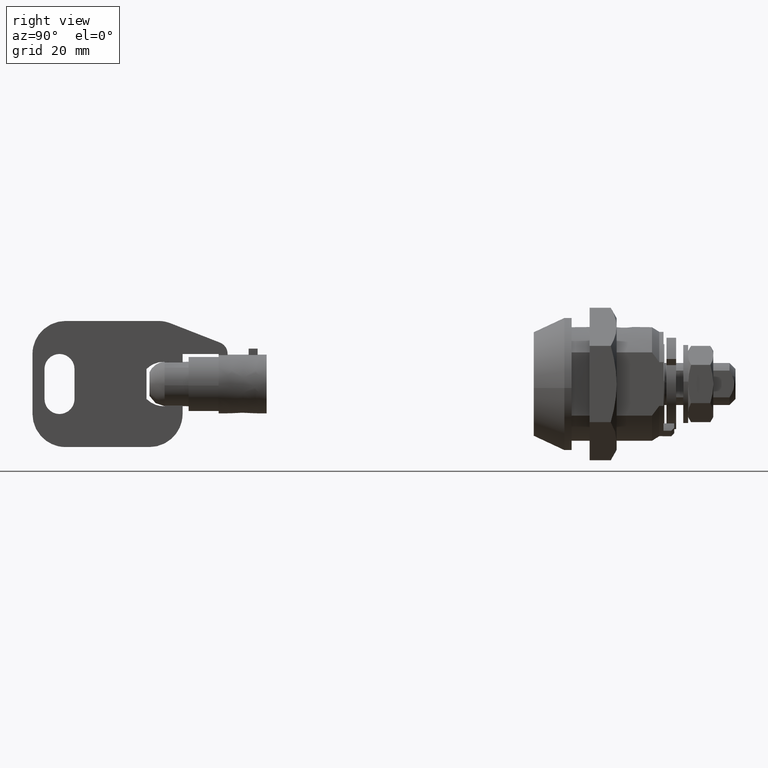
[diagram: clean part render]
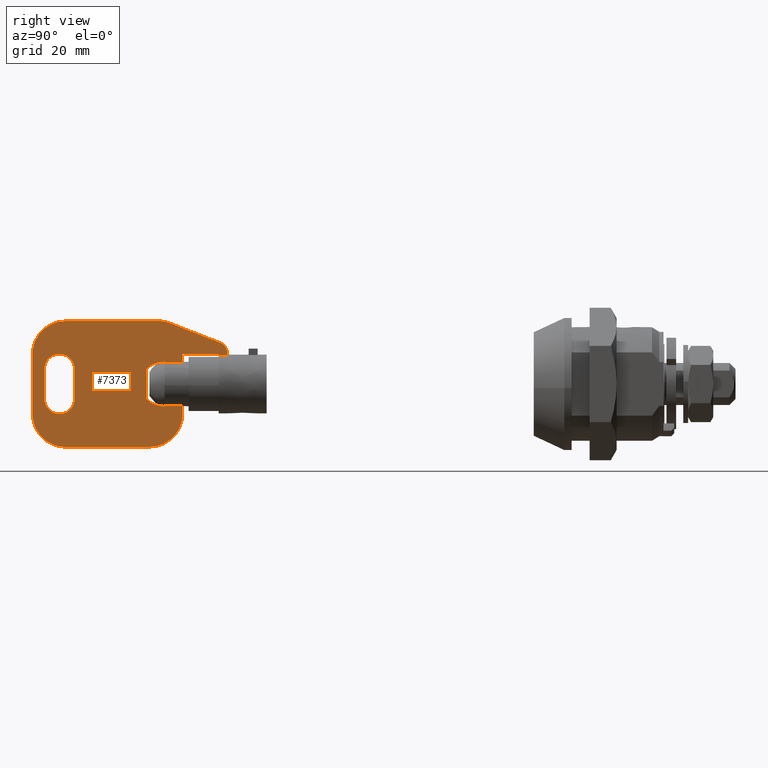
[diagram: same view with one face highlighted and labeled with its STEP entity id]
A machine part, right view. The second image highlights one B-rep face of the part: STEP entity #7373.
In plain terms, the highlighted face is a freeform B-spline surface patch.
Its self-contained STEP definition (entity closure, byte-faithful):
#5541=CARTESIAN_POINT('',(-61.487812432673103,-0.900000000000000,3.588871688985170));
#5542=VERTEX_POINT('',#5541);
#5617=CARTESIAN_POINT('',(-61.487812432673103,-0.900000000000000,-3.588871688985170));
#5618=VERTEX_POINT('',#5617);
#5632=CARTESIAN_POINT('',(-58.490193000000012,-0.900000000000000,-3.588871688985170));
#5633=VERTEX_POINT('',#5632);
#5634=CARTESIAN_POINT('',(-61.487812432673103,-0.900000000000000,-3.588871688985170));
#5635=CARTESIAN_POINT('',(-58.490193000000012,-0.900000000000000,-3.588871688985170));
#5636=QUASI_UNIFORM_CURVE('',1,(#5634,#5635),.UNSPECIFIED.,.F.,.U.);
#5637=EDGE_CURVE('',#5618,#5633,#5636,.T.);
#5700=CARTESIAN_POINT('',(-58.490193000000012,-0.900000000000000,3.588871688985170));
#5701=VERTEX_POINT('',#5700);
#5715=CARTESIAN_POINT('',(-58.490193000000012,-0.900000000000000,3.588871688985170));
#5716=CARTESIAN_POINT('',(-61.487812432673103,-0.900000000000000,3.588871688985170));
#5717=QUASI_UNIFORM_CURVE('',1,(#5715,#5716),.UNSPECIFIED.,.F.,.U.);
#5718=EDGE_CURVE('',#5701,#5542,#5717,.T.);
#5882=CARTESIAN_POINT('',(-50.990193000000012,-0.900000000000000,4.816637831516920));
#5883=VERTEX_POINT('',#5882);
#5897=CARTESIAN_POINT('',(-52.490192999999998,-0.900000000000000,4.816637831516920));
#5898=VERTEX_POINT('',#5897);
#5899=CARTESIAN_POINT('',(-50.990193000000012,-0.900000000000000,4.816637831516920));
#5900=CARTESIAN_POINT('',(-52.490192999999998,-0.900000000000000,4.816637831516920));
#5901=QUASI_UNIFORM_CURVE('',1,(#5899,#5900),.UNSPECIFIED.,.F.,.U.);
#5902=EDGE_CURVE('',#5883,#5898,#5901,.T.);
#6125=CARTESIAN_POINT('',(-61.490199608887401,-0.900000000000000,-3.588702282998970));
#6126=VERTEX_POINT('',#6125);
#6140=CARTESIAN_POINT('',(-61.490199608887423,-0.900000000000000,-3.588702282999030));
#6141=CARTESIAN_POINT('',(-61.489403980217247,-0.900000000000000,-3.588759073560181));
#6142=CARTESIAN_POINT('',(-61.488608254140843,-0.900000000000000,-3.588815540332797));
#6143=CARTESIAN_POINT('',(-61.487812432673103,-0.900000000000000,-3.588871688985170));
#6144=B_SPLINE_CURVE_WITH_KNOTS('',3,(#6140,#6141,#6142,#6143),.UNSPECIFIED.,.F.,.U.,(4,4),(0.0,0.000217530826525),.UNSPECIFIED.);
#6145=EDGE_CURVE('',#6126,#5618,#6144,.T.);
#6150=CARTESIAN_POINT('',(-61.490192999999891,-0.900000000000000,3.588702754722065));
#6151=VERTEX_POINT('',#6150);
#6152=CARTESIAN_POINT('',(-61.487812432673103,-0.900000000000000,3.588871688985170));
#6153=CARTESIAN_POINT('',(-61.488605935360383,-0.900000000000000,3.588815710378920));
#6154=CARTESIAN_POINT('',(-61.489399457490940,-0.900000000000000,3.588759394561064));
#6155=CARTESIAN_POINT('',(-61.490192999999891,-0.900000000000000,3.588702754722090));
#6156=B_SPLINE_CURVE_WITH_KNOTS('',3,(#6152,#6153,#6154,#6155),.UNSPECIFIED.,.F.,.U.,(4,4),(0.999783444907075,1.0),.UNSPECIFIED.);
#6157=EDGE_CURVE('',#5542,#6151,#6156,.T.);
#6409=CARTESIAN_POINT('',(-81.490193000000005,-0.900000000000012,-2.500000000000000));
#6410=VERTEX_POINT('',#6409);
#6411=CARTESIAN_POINT('',(-76.490193000000005,-0.900000000000012,-2.500000000000000));
#6412=VERTEX_POINT('',#6411);
#6413=CARTESIAN_POINT('',(-81.490193000000005,-0.900000000000012,-2.500000000000000));
#6414=CARTESIAN_POINT('',(-81.490193000000005,-0.900000000000012,-5.000000000000001));
#6415=CARTESIAN_POINT('',(-78.990193000000005,-0.900000000000012,-5.0));
#6416=CARTESIAN_POINT('',(-76.490192999999991,-0.900000000000012,-5.000000000000001));
#6417=CARTESIAN_POINT('',(-76.490193000000005,-0.900000000000012,-2.500000000000000));
#6425=(BOUNDED_CURVE()B_SPLINE_CURVE(2,(#6413,#6414,#6415,#6416,#6417),.UNSPECIFIED.,.F.,.U.)B_SPLINE_CURVE_WITH_KNOTS((3,2,3),(0.0,0.500000000000000,1.0),.UNSPECIFIED.)CURVE()GEOMETRIC_REPRESENTATION_ITEM()RATIONAL_B_SPLINE_CURVE((1.0,0.707106781186548,1.0,0.707106781186548,1.0))REPRESENTATION_ITEM(''));
#6426=EDGE_CURVE('',#6410,#6412,#6425,.T.);
#6465=CARTESIAN_POINT('',(-76.490193000000005,-0.900000000000012,2.500000000000000));
#6466=VERTEX_POINT('',#6465);
#6467=CARTESIAN_POINT('',(-76.490193000000005,-0.900000000000012,2.500000000000000));
#6468=CARTESIAN_POINT('',(-76.490193000000005,-0.900000000000012,-2.500000000000000));
#6469=QUASI_UNIFORM_CURVE('',1,(#6467,#6468),.UNSPECIFIED.,.F.,.U.);
#6470=EDGE_CURVE('',#6466,#6412,#6469,.T.);
#6506=CARTESIAN_POINT('',(-81.490193000000005,-0.900000000000012,2.500000000000000));
#6507=VERTEX_POINT('',#6506);
#6508=CARTESIAN_POINT('',(-76.490193000000005,-0.900000000000012,2.500000000000000));
#6509=CARTESIAN_POINT('',(-76.490192999999991,-0.900000000000012,5.000000000000001));
#6510=CARTESIAN_POINT('',(-78.990193000000005,-0.900000000000012,5.0));
#6511=CARTESIAN_POINT('',(-81.490193000000005,-0.900000000000012,5.000000000000001));
#6512=CARTESIAN_POINT('',(-81.490193000000005,-0.900000000000012,2.500000000000000));
#6520=(BOUNDED_CURVE()B_SPLINE_CURVE(2,(#6508,#6509,#6510,#6511,#6512),.UNSPECIFIED.,.F.,.U.)B_SPLINE_CURVE_WITH_KNOTS((3,2,3),(0.0,0.500000000000000,1.0),.UNSPECIFIED.)CURVE()GEOMETRIC_REPRESENTATION_ITEM()RATIONAL_B_SPLINE_CURVE((1.0,0.707106781186548,1.0,0.707106781186548,1.0))REPRESENTATION_ITEM(''));
#6521=EDGE_CURVE('',#6466,#6507,#6520,.T.);
#6554=CARTESIAN_POINT('',(-81.490193000000005,-0.900000000000012,-2.500000000000000));
#6555=CARTESIAN_POINT('',(-81.490193000000005,-0.900000000000012,2.500000000000000));
#6556=QUASI_UNIFORM_CURVE('',1,(#6554,#6555),.UNSPECIFIED.,.F.,.U.);
#6557=EDGE_CURVE('',#6410,#6507,#6556,.T.);
#6600=CARTESIAN_POINT('',(-62.526610622687897,-0.900000000000000,10.500000000000000));
#6601=VERTEX_POINT('',#6600);
#6607=CARTESIAN_POINT('',(-60.526312026143103,-0.900000000000000,10.123358812796660));
#6608=VERTEX_POINT('',#6607);
#6609=CARTESIAN_POINT('',(-60.526312026143110,-0.900000000000012,10.123358812796640));
#6610=CARTESIAN_POINT('',(-61.491001972461007,-0.900000000000012,10.500000000000000));
#6611=CARTESIAN_POINT('',(-62.526610622687897,-0.900000000000012,10.500000000000000));
#6619=(BOUNDED_CURVE()B_SPLINE_CURVE(2,(#6609,#6610,#6611),.UNSPECIFIED.,.F.,.U.)CURVE()GEOMETRIC_REPRESENTATION_ITEM()QUASI_UNIFORM_CURVE()RATIONAL_B_SPLINE_CURVE((1.0,0.982730833988851,1.0))REPRESENTATION_ITEM(''));
#6620=EDGE_CURVE('',#6608,#6601,#6619,.T.);
#6661=CARTESIAN_POINT('',(-52.262811692165499,-0.900000000000000,6.897063578639590));
#6662=VERTEX_POINT('',#6661);
#6668=CARTESIAN_POINT('',(-50.990193000000012,-0.900000000000000,5.034024010349899));
#6669=VERTEX_POINT('',#6668);
#6670=CARTESIAN_POINT('',(-50.990192999999998,-0.900000000000012,5.034024010349899));
#6671=CARTESIAN_POINT('',(-50.990192999999991,-0.900000000000012,6.400198635759287));
#6672=CARTESIAN_POINT('',(-52.262811692165513,-0.900000000000012,6.897063578639575));
#6680=(BOUNDED_CURVE()B_SPLINE_CURVE(2,(#6670,#6671,#6672),.UNSPECIFIED.,.F.,.U.)CURVE()GEOMETRIC_REPRESENTATION_ITEM()QUASI_UNIFORM_CURVE()RATIONAL_B_SPLINE_CURVE((1.0,0.825739260879985,1.0))REPRESENTATION_ITEM(''));
#6681=EDGE_CURVE('',#6669,#6662,#6680,.T.);
#6696=CARTESIAN_POINT('',(-58.490193000000012,-0.900000000000012,5.0));
#6697=VERTEX_POINT('',#6696);
#6698=CARTESIAN_POINT('',(-52.490192999999998,-0.900000000000012,5.0));
#6699=VERTEX_POINT('',#6698);
#6700=CARTESIAN_POINT('',(-58.490193000000012,-0.900000000000012,5.0));
#6701=CARTESIAN_POINT('',(-52.490192999999998,-0.900000000000012,5.0));
#6702=QUASI_UNIFORM_CURVE('',1,(#6700,#6701),.UNSPECIFIED.,.F.,.U.);
#6703=EDGE_CURVE('',#6697,#6699,#6702,.T.);
#6732=CARTESIAN_POINT('',(-64.490193000000005,-0.900000000000012,-2.500520151848770));
#6733=VERTEX_POINT('',#6732);
#6734=CARTESIAN_POINT('',(-64.490193000000005,-0.900000000000012,2.499520151848455));
#6735=VERTEX_POINT('',#6734);
#6736=CARTESIAN_POINT('',(-64.490193000000005,-0.900000000000012,-2.500520151848770));
#6737=CARTESIAN_POINT('',(-64.490193000000005,-0.900000000000012,2.499520151848455));
#6738=QUASI_UNIFORM_CURVE('',1,(#6736,#6737),.UNSPECIFIED.,.F.,.U.);
#6739=EDGE_CURVE('',#6733,#6735,#6738,.T.);
#6777=CARTESIAN_POINT('',(-61.490199608887401,-0.900000000000012,-3.700514335641915));
#6778=VERTEX_POINT('',#6777);
#6779=CARTESIAN_POINT('',(-64.490193000000005,-0.900000000000012,-2.500520151848772));
#6780=CARTESIAN_POINT('',(-63.255093754734816,-0.900000000000012,-3.762762620372036));
#6781=CARTESIAN_POINT('',(-61.490199608887401,-0.900000000000012,-3.700514335641909));
#6789=(BOUNDED_CURVE()B_SPLINE_CURVE(2,(#6779,#6780,#6781),.UNSPECIFIED.,.F.,.U.)CURVE()GEOMETRIC_REPRESENTATION_ITEM()QUASI_UNIFORM_CURVE()RATIONAL_B_SPLINE_CURVE((1.0,0.914809181026153,1.0))REPRESENTATION_ITEM(''));
#6790=EDGE_CURVE('',#6733,#6778,#6789,.T.);
#6830=CARTESIAN_POINT('',(-63.990192999999998,-0.900000000000012,-10.500000000000201));
#6831=VERTEX_POINT('',#6830);
#6832=CARTESIAN_POINT('',(-58.490193000000012,-0.900000000000012,-5.0));
#6833=VERTEX_POINT('',#6832);
#6834=CARTESIAN_POINT('',(-63.990192999999998,-0.900000000000012,-10.500000000000000));
#6835=CARTESIAN_POINT('',(-58.490193000000005,-0.900000000000012,-10.499999999999998));
#6836=CARTESIAN_POINT('',(-58.490193000000012,-0.900000000000012,-5.0));
#6844=(BOUNDED_CURVE()B_SPLINE_CURVE(2,(#6834,#6835,#6836),.UNSPECIFIED.,.F.,.U.)CURVE()GEOMETRIC_REPRESENTATION_ITEM()QUASI_UNIFORM_CURVE()RATIONAL_B_SPLINE_CURVE((1.0,0.707106781186548,1.0))REPRESENTATION_ITEM(''));
#6845=EDGE_CURVE('',#6831,#6833,#6844,.T.);
#6882=CARTESIAN_POINT('',(-77.990193000000005,-0.900000000000012,-10.500000000000000));
#6883=VERTEX_POINT('',#6882);
#6884=CARTESIAN_POINT('',(-77.990193000000005,-0.900000000000012,-10.500000000000000));
#6885=CARTESIAN_POINT('',(-63.990192999999998,-0.900000000000012,-10.500000000000201));
#6886=QUASI_UNIFORM_CURVE('',1,(#6884,#6885),.UNSPECIFIED.,.F.,.U.);
#6887=EDGE_CURVE('',#6883,#6831,#6886,.T.);
#6919=CARTESIAN_POINT('',(-83.490193000000005,-0.900000000000012,-5.0));
#6920=VERTEX_POINT('',#6919);
#6921=CARTESIAN_POINT('',(-83.490193000000005,-0.900000000000012,-5.0));
#6922=CARTESIAN_POINT('',(-83.490193000000005,-0.900000000000012,-10.499999999999998));
#6923=CARTESIAN_POINT('',(-77.990193000000005,-0.900000000000012,-10.500000000000000));
#6931=(BOUNDED_CURVE()B_SPLINE_CURVE(2,(#6921,#6922,#6923),.UNSPECIFIED.,.F.,.U.)CURVE()GEOMETRIC_REPRESENTATION_ITEM()QUASI_UNIFORM_CURVE()RATIONAL_B_SPLINE_CURVE((1.0,0.707106781186548,1.0))REPRESENTATION_ITEM(''));
#6932=EDGE_CURVE('',#6920,#6883,#6931,.T.);
#6963=CARTESIAN_POINT('',(-83.490193000000005,-0.900000000000012,5.0));
#6964=VERTEX_POINT('',#6963);
#6965=CARTESIAN_POINT('',(-83.490193000000005,-0.900000000000012,5.0));
#6966=CARTESIAN_POINT('',(-83.490193000000005,-0.900000000000012,-5.0));
#6967=QUASI_UNIFORM_CURVE('',1,(#6965,#6966),.UNSPECIFIED.,.F.,.U.);
#6968=EDGE_CURVE('',#6964,#6920,#6967,.T.);
#7000=CARTESIAN_POINT('',(-77.990193000000005,-0.900000000000012,10.500000000000000));
#7001=VERTEX_POINT('',#7000);
#7002=CARTESIAN_POINT('',(-77.990193000000005,-0.900000000000012,10.500000000000000));
#7003=CARTESIAN_POINT('',(-83.490193000000005,-0.900000000000012,10.499999999999998));
#7004=CARTESIAN_POINT('',(-83.490193000000005,-0.900000000000012,5.0));
#7012=(BOUNDED_CURVE()B_SPLINE_CURVE(2,(#7002,#7003,#7004),.UNSPECIFIED.,.F.,.U.)CURVE()GEOMETRIC_REPRESENTATION_ITEM()QUASI_UNIFORM_CURVE()RATIONAL_B_SPLINE_CURVE((1.0,0.707106781186548,1.0))REPRESENTATION_ITEM(''));
#7013=EDGE_CURVE('',#7001,#6964,#7012,.T.);
#7044=CARTESIAN_POINT('',(-62.526610622687897,-0.900000000000000,10.500000000000000));
#7045=CARTESIAN_POINT('',(-77.990193000000005,-0.900000000000012,10.500000000000000));
#7046=QUASI_UNIFORM_CURVE('',1,(#7044,#7045),.UNSPECIFIED.,.F.,.U.);
#7047=EDGE_CURVE('',#6601,#7001,#7046,.T.);
#7070=CARTESIAN_POINT('',(-52.262811692165499,-0.900000000000000,6.897063578639590));
#7071=CARTESIAN_POINT('',(-60.526312026143103,-0.900000000000000,10.123358812796660));
#7072=QUASI_UNIFORM_CURVE('',1,(#7070,#7071),.UNSPECIFIED.,.F.,.U.);
#7073=EDGE_CURVE('',#6662,#6608,#7072,.T.);
#7085=CARTESIAN_POINT('',(-61.490192999999998,-0.900000000000012,3.699514102538915));
#7086=VERTEX_POINT('',#7085);
#7087=CARTESIAN_POINT('',(-61.490192999999998,-0.900000000000012,3.699514102538915));
#7088=CARTESIAN_POINT('',(-61.490192999999891,-0.900000000000000,3.588702754722065));
#7089=QUASI_UNIFORM_CURVE('',1,(#7087,#7088),.UNSPECIFIED.,.F.,.U.);
#7090=EDGE_CURVE('',#7086,#6151,#7089,.T.);
#7139=CARTESIAN_POINT('',(-61.490192999999998,-0.900000000000012,3.699514102538912));
#7140=CARTESIAN_POINT('',(-63.255090991481552,-0.900000000000012,3.761765444351775));
#7141=CARTESIAN_POINT('',(-64.490193000000005,-0.900000000000012,2.499520151848459));
#7149=(BOUNDED_CURVE()B_SPLINE_CURVE(2,(#7139,#7140,#7141),.UNSPECIFIED.,.F.,.U.)CURVE()GEOMETRIC_REPRESENTATION_ITEM()QUASI_UNIFORM_CURVE()RATIONAL_B_SPLINE_CURVE((1.0,0.914808847163458,1.0))REPRESENTATION_ITEM(''));
#7150=EDGE_CURVE('',#7086,#6735,#7149,.T.);
#7181=CARTESIAN_POINT('',(-61.490199608887401,-0.900000000000000,-3.588702282998970));
#7182=CARTESIAN_POINT('',(-61.490199608887401,-0.900000000000012,-3.700514335641915));
#7183=QUASI_UNIFORM_CURVE('',1,(#7181,#7182),.UNSPECIFIED.,.F.,.U.);
#7184=EDGE_CURVE('',#6126,#6778,#7183,.T.);
#7201=CARTESIAN_POINT('',(-58.490193000000012,-0.900000000000000,3.588871688985170));
#7202=CARTESIAN_POINT('',(-58.490193000000012,-0.900000000000012,5.0));
#7203=QUASI_UNIFORM_CURVE('',1,(#7201,#7202),.UNSPECIFIED.,.F.,.U.);
#7204=EDGE_CURVE('',#5701,#6697,#7203,.T.);
#7215=CARTESIAN_POINT('',(-58.490193000000012,-0.900000000000012,-5.0));
#7216=CARTESIAN_POINT('',(-58.490193000000012,-0.900000000000000,-3.588871688985170));
#7217=QUASI_UNIFORM_CURVE('',1,(#7215,#7216),.UNSPECIFIED.,.F.,.U.);
#7218=EDGE_CURVE('',#6833,#5633,#7217,.T.);
#7240=CARTESIAN_POINT('',(-50.990193000000012,-0.900000000000000,4.816637831516920));
#7241=CARTESIAN_POINT('',(-50.990193000000012,-0.900000000000000,5.034024010349899));
#7242=QUASI_UNIFORM_CURVE('',1,(#7240,#7241),.UNSPECIFIED.,.F.,.U.);
#7243=EDGE_CURVE('',#5883,#6669,#7242,.T.);
#7298=CARTESIAN_POINT('',(-52.490192999999998,-0.900000000000012,5.0));
#7299=CARTESIAN_POINT('',(-52.490192999999998,-0.900000000000000,4.816637831516920));
#7300=QUASI_UNIFORM_CURVE('',1,(#7298,#7299),.UNSPECIFIED.,.F.,.U.);
#7301=EDGE_CURVE('',#6699,#5898,#7300,.T.);
#7336=CARTESIAN_POINT('',(-85.113571292962916,-0.900000000000000,-11.548949959298140));
#7337=CARTESIAN_POINT('',(-49.366817031618240,-0.900000000000000,-11.548949959298140));
#7338=CARTESIAN_POINT('',(-85.113571292962916,-0.900000000000000,11.548950522561830));
#7339=CARTESIAN_POINT('',(-49.366817031618240,-0.900000000000000,11.548950522561830));
#7340=B_SPLINE_SURFACE_WITH_KNOTS('',1,1,((#7336,#7338),(#7337,#7339)),.UNSPECIFIED.,.F.,.F.,.U.,(2,2),(2,2),(0.0,35.746754261344677),(0.0,23.097900481859970),.UNSPECIFIED.);
#7341=ORIENTED_EDGE('',*,*,#7073,.T.);
#7342=ORIENTED_EDGE('',*,*,#6620,.T.);
#7343=ORIENTED_EDGE('',*,*,#7047,.T.);
#7344=ORIENTED_EDGE('',*,*,#7013,.T.);
#7345=ORIENTED_EDGE('',*,*,#6968,.T.);
#7346=ORIENTED_EDGE('',*,*,#6932,.T.);
#7347=ORIENTED_EDGE('',*,*,#6887,.T.);
#7348=ORIENTED_EDGE('',*,*,#6845,.T.);
#7349=ORIENTED_EDGE('',*,*,#7218,.T.);
#7350=ORIENTED_EDGE('',*,*,#5637,.F.);
#7351=ORIENTED_EDGE('',*,*,#6145,.F.);
#7352=ORIENTED_EDGE('',*,*,#7184,.T.);
#7353=ORIENTED_EDGE('',*,*,#6790,.F.);
#7354=ORIENTED_EDGE('',*,*,#6739,.T.);
#7355=ORIENTED_EDGE('',*,*,#7150,.F.);
#7356=ORIENTED_EDGE('',*,*,#7090,.T.);
#7357=ORIENTED_EDGE('',*,*,#6157,.F.);
#7358=ORIENTED_EDGE('',*,*,#5718,.F.);
#7359=ORIENTED_EDGE('',*,*,#7204,.T.);
#7360=ORIENTED_EDGE('',*,*,#6703,.T.);
#7361=ORIENTED_EDGE('',*,*,#7301,.T.);
#7362=ORIENTED_EDGE('',*,*,#5902,.F.);
#7363=ORIENTED_EDGE('',*,*,#7243,.T.);
#7364=ORIENTED_EDGE('',*,*,#6681,.T.);
#7365=EDGE_LOOP('',(#7341,#7342,#7343,#7344,#7345,#7346,#7347,#7348,#7349,#7350,#7351,#7352,#7353,#7354,#7355,#7356,#7357,#7358,#7359,#7360,#7361,#7362,#7363,#7364));
#7366=FACE_OUTER_BOUND('',#7365,.T.);
#7367=ORIENTED_EDGE('',*,*,#6426,.F.);
#7368=ORIENTED_EDGE('',*,*,#6557,.T.);
#7369=ORIENTED_EDGE('',*,*,#6521,.F.);
#7370=ORIENTED_EDGE('',*,*,#6470,.T.);
#7371=EDGE_LOOP('',(#7367,#7368,#7369,#7370));
#7372=FACE_BOUND('',#7371,.T.);
#7373=ADVANCED_FACE('',(#7366,#7372),#7340,.T.);